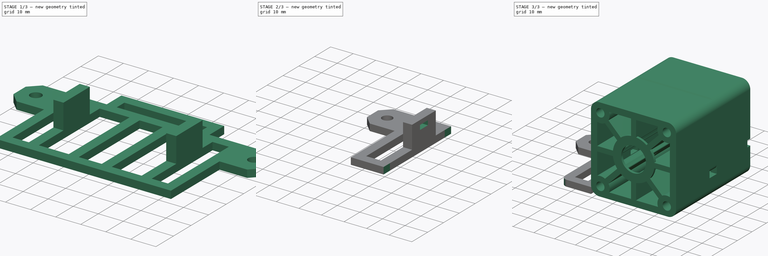
[diagram: build sequence overview — one tinted view per stage of 3, left to right]
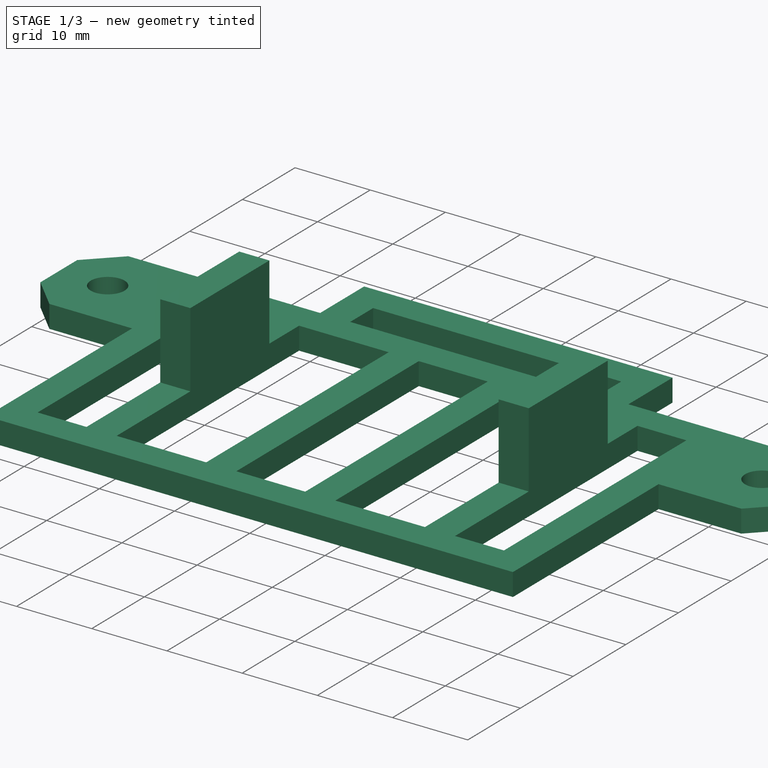
[diagram: stage 1 of 3 — iso view after this stage's code; geometry added in this stage tinted green]
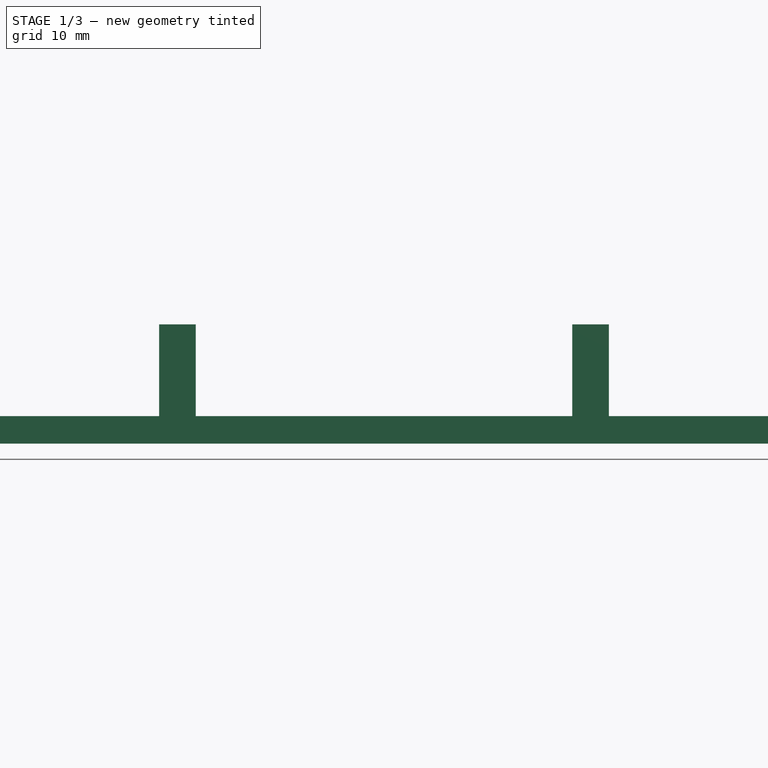
[diagram: stage 1 of 3 — front view after this stage's code; geometry added in this stage tinted green]
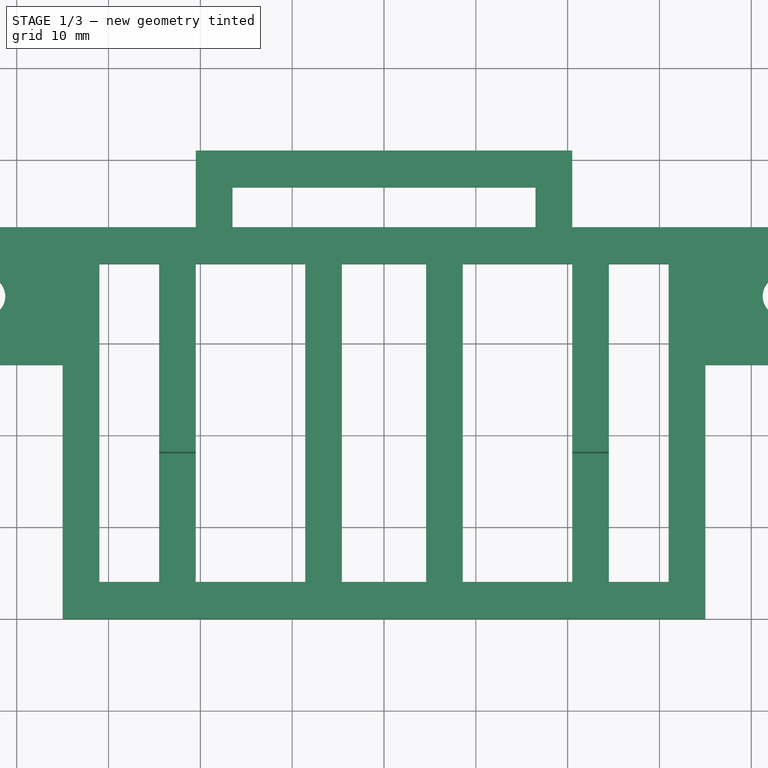
[diagram: stage 1 of 3 — top view after this stage's code; geometry added in this stage tinted green]
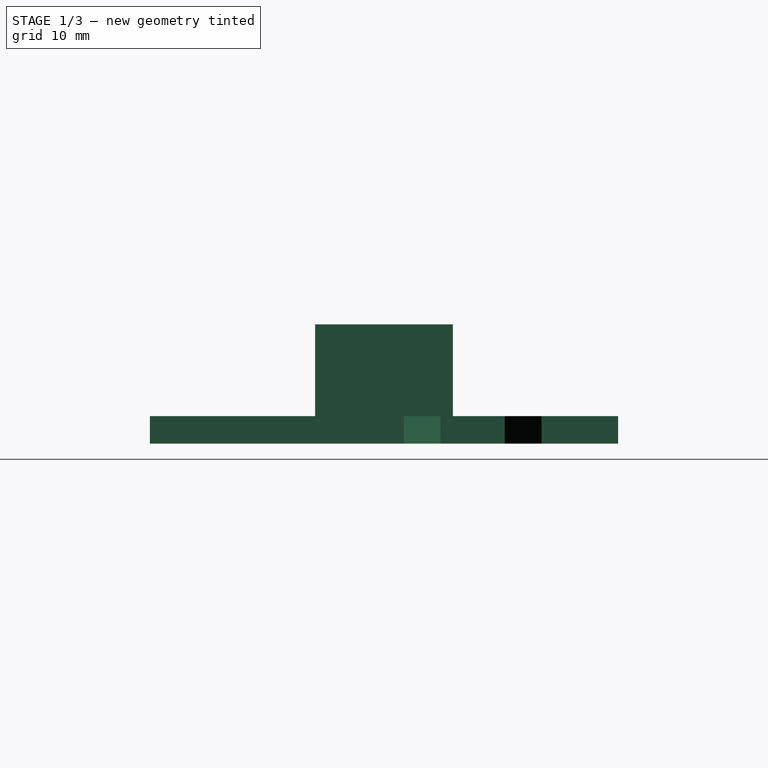
[diagram: stage 1 of 3 — right view after this stage's code; geometry added in this stage tinted green]
FCSTD DOCUMENT  (FreeCAD 0.16R6697 (Git))
Label: CNC Mount Halterung Laserdiode
License: All rights reserved
LicenseURL: http://de.wikipedia.org/wiki/Alle_Rechte_vorbehalten
objects: Drawing::FeatureViewPython×15, Sketcher::SketchObject×5, PartDesign::Pocket×3, PartDesign::Pad×2, PartDesign::Fillet×2, Drawing::FeatureViewPart×2, Part::FeaturePython×1, Drawing::FeaturePage×1
note: 18 computed .brp shape members not serialized (recipe doc carries the construction recipe); baked Part::Feature solids carry a one-line shape summary decoded from their .brp

FEATURE [Sketcher::SketchObject] Sketch
  sketch-geometry (20):
    g0: LineSegment StartX=-50 StartY=31.65 StartZ=0 EndX=-46 EndY=27.65 EndZ=0
    g1: LineSegment StartX=-46 StartY=27.65 StartZ=0 EndX=-35 EndY=27.65 EndZ=0
    g2: LineSegment StartX=-35 StartY=27.65 StartZ=0 EndX=-35 EndY=0 EndZ=0
    g3: LineSegment StartX=-35 StartY=0 StartZ=0 EndX=35 EndY=0 EndZ=0
    g4: LineSegment StartX=35 StartY=0 StartZ=0 EndX=35 EndY=27.65 EndZ=0
    g5: LineSegment StartX=35 StartY=27.65 StartZ=0 EndX=46 EndY=27.65 EndZ=0
    g6: LineSegment StartX=46 StartY=27.65 StartZ=0 EndX=50 EndY=31.65 EndZ=0
    g7: LineSegment StartX=50 StartY=31.65 StartZ=0 EndX=50 EndY=38.65 EndZ=0
    g8: LineSegment StartX=50 StartY=38.65 StartZ=0 EndX=46 EndY=42.65 EndZ=0
    g9: LineSegment [constr] StartX=46 StartY=42.65 StartZ=0 EndX=-46 EndY=42.65 EndZ=0
    g10: LineSegment StartX=-46 StartY=42.65 StartZ=0 EndX=-50 EndY=38.65 EndZ=0
    g11: LineSegment StartX=-50 StartY=38.65 StartZ=0 EndX=-50 EndY=31.65 EndZ=0
    g12: LineSegment [constr] StartX=-43.5 StartY=35.15 StartZ=0 EndX=43.5 EndY=35.15 EndZ=0
    g13: Circle CenterX=-43.5 CenterY=35.15 CenterZ=0 NormalX=0 NormalY=0 NormalZ=1 Radius=2.25
    g14: Circle CenterX=43.5 CenterY=35.15 CenterZ=0 NormalX=0 NormalY=0 NormalZ=1 Radius=2.25
    g15: LineSegment StartX=-46 StartY=42.65 StartZ=0 EndX=-20.5 EndY=42.65 EndZ=0
    g16: LineSegment StartX=-20.5 StartY=42.65 StartZ=0 EndX=-20.5 EndY=51 EndZ=0
    g17: LineSegment StartX=-20.5 StartY=51 StartZ=0 EndX=20.5 EndY=51 EndZ=0
    g18: LineSegment StartX=20.5 StartY=51 StartZ=0 EndX=20.5 EndY=42.65 EndZ=0
    g19: LineSegment StartX=20.5 StartY=42.65 StartZ=0 EndX=46 EndY=42.65 EndZ=0
  constraints (56):
    c: Coincident(g0,g1)
    c: Horizontal(g1)
    c: Coincident(g1,g2)
    c: PointOnObject(g2,g-1)
    c: Vertical(g2)
    c: Coincident(g2,g3)
    c: PointOnObject(g3,g-1)
    c: Coincident(g3,g4)
    c: Vertical(g4)
    c: Coincident(g4,g5)
    c: Horizontal(g5)
    c: Coincident(g5,g6)
    c: Coincident(g6,g7)
    c: Vertical(g7)
    c: Coincident(g7,g8)
    c: Coincident(g8,g9)
    c: Horizontal(g9)
    c: Coincident(g9,g10)
    c: Coincident(g10,g11)
    c: Coincident(g11,g0)
    c: Vertical(g11)
    c: PointOnObject(g4,g1)
    c: DistanceY(g4,g4) = 27.65
    c: DistanceX(g2,g-1) = 35
    c: Symmetric(g2,g3,g-2)
    c: DistanceX(g0,g-1) = 50
    c: Equal(g1,g5)
    c: Symmetric(g8,g9,g-2)
    c: Symmetric(g0,g6,g-2)
    c: DistanceX(g8,g7) = 4
    c: DistanceY(g7,g8) = 4
    c: DistanceX(g5,g6) = 4
    c: DistanceY(g5,g6) = 4
    c: Parallel(g6,g10)
    c: DistanceY(g-1,g9) = 42.65
    c: Symmetric(g12,g12,g-2)
    c: Coincident(g13,g12)
    c: Coincident(g14,g12)
    c: Radius(g13) = 2.25
    c: Equal(g13,g14)
    c: Symmetric(g9,g0,g12)
    c: DistanceX(g12,g-1) = 43.5
    c: Horizontal(g15)
    c: Coincident(g15,g16)
    c: Vertical(g16)
    c: Coincident(g16,g17)
    c: Horizontal(g17)
    c: Coincident(g17,g18)
    c: Vertical(g18)
    c: Coincident(g18,g19)
    c: Horizontal(g19)
    c: Coincident(g8,g19)
    c: Symmetric(g16,g17,g-2)
    c: Coincident(g9,g15)
    c: DistanceY(g2,g16) = 51
    c: DistanceX(g17,g17) = 41
FEATURE [PartDesign::Pad] Pad
  Length = 3
  Length2 = 100
  Sketch = -> Sketch
  Type = 0
FEATURE [Sketcher::SketchObject] Sketch001
  ExternalGeometry = -> [Pad]
  Placement = pos=(0,0,3) rot=(0,0,1;0rad)
  Support = -> Pad [Face20]
  sketch-geometry (28):
    g0: LineSegment StartX=-4.58389 StartY=38.65 StartZ=0 EndX=4.58389 EndY=38.65 EndZ=0
    g1: LineSegment StartX=4.58389 StartY=38.65 StartZ=0 EndX=4.58389 EndY=4 EndZ=0
    g2: LineSegment StartX=4.58389 StartY=4 StartZ=0 EndX=-4.58389 EndY=4 EndZ=0
    g3: LineSegment StartX=-4.58389 StartY=4 StartZ=0 EndX=-4.58389 EndY=38.65 EndZ=0
    g4: LineSegment StartX=-20.5 StartY=38.65 StartZ=0 EndX=-8.58389 EndY=38.65 EndZ=0
    g5: LineSegment StartX=-8.58389 StartY=38.65 StartZ=0 EndX=-8.58389 EndY=4 EndZ=0
    g6: LineSegment StartX=-8.58389 StartY=4 StartZ=0 EndX=-20.5 EndY=4 EndZ=0
    g7: LineSegment StartX=-20.5 StartY=4 StartZ=0 EndX=-20.5 EndY=38.65 EndZ=0
    g8: LineSegment StartX=-31 StartY=38.65 StartZ=0 EndX=-24.5 EndY=38.65 EndZ=0
    g9: LineSegment StartX=-24.5 StartY=38.65 StartZ=0 EndX=-24.5 EndY=4 EndZ=0
    g10: LineSegment StartX=-24.5 StartY=4 StartZ=0 EndX=-31 EndY=4 EndZ=0
    g11: LineSegment StartX=-31 StartY=4 StartZ=0 EndX=-31 EndY=38.65 EndZ=0
    g12: LineSegment StartX=8.58389 StartY=38.65 StartZ=0 EndX=20.5 EndY=38.65 EndZ=0
    g13: LineSegment StartX=20.5 StartY=38.65 StartZ=0 EndX=20.5 EndY=4 EndZ=0
    g14: LineSegment StartX=20.5 StartY=4 StartZ=0 EndX=8.58389 EndY=4 EndZ=0
    g15: LineSegment StartX=8.58389 StartY=4 StartZ=0 EndX=8.58389 EndY=38.65 EndZ=0
    g16: LineSegment StartX=24.5 StartY=38.65 StartZ=0 EndX=31 EndY=38.65 EndZ=0
    g17: LineSegment StartX=31 StartY=38.65 StartZ=0 EndX=31 EndY=4 EndZ=0
    g18: LineSegment StartX=31 StartY=4 StartZ=0 EndX=24.5 EndY=4 EndZ=0
    g19: LineSegment StartX=24.5 StartY=4 StartZ=0 EndX=24.5 EndY=38.65 EndZ=0
    g20: LineSegment [constr] StartX=-20.5 StartY=4 StartZ=0 EndX=-24.5 EndY=4 EndZ=0
    g21: LineSegment [constr] StartX=-8.58389 StartY=4 StartZ=0 EndX=-4.58389 EndY=4 EndZ=0
    g22: LineSegment [constr] StartX=4.58389 StartY=4 StartZ=0 EndX=8.58389 EndY=4 EndZ=0
    g23: LineSegment [constr] StartX=20.5 StartY=4 StartZ=0 EndX=24.5 EndY=4 EndZ=0
    g24: LineSegment StartX=-16.5 StartY=47 StartZ=0 EndX=16.5 EndY=47 EndZ=0
    g25: LineSegment StartX=16.5 StartY=47 StartZ=0 EndX=16.5 EndY=42.65 EndZ=0
    g26: LineSegment StartX=16.5 StartY=42.65 StartZ=0 EndX=-16.5 EndY=42.65 EndZ=0
    g27: LineSegment StartX=-16.5 StartY=42.65 StartZ=0 EndX=-16.5 EndY=47 EndZ=0
  constraints (78):
    c: Coincident(g0,g1)
    c: Coincident(g1,g2)
    c: Coincident(g2,g3)
    c: Coincident(g3,g0)
    c: Horizontal(g0)
    c: Vertical(g1)
    c: Vertical(g3)
    c: Coincident(g4,g5)
    c: Coincident(g5,g6)
    c: Coincident(g6,g7)
    c: Coincident(g7,g4)
    c: Horizontal(g4)
    c: Horizontal(g6)
    c: Vertical(g5)
    c: Vertical(g7)
    c: Coincident(g8,g9)
    c: Coincident(g9,g10)
    c: Coincident(g10,g11)
    c: Coincident(g11,g8)
    c: Horizontal(g8)
    c: Horizontal(g10)
    c: Vertical(g9)
    c: Vertical(g11)
    c: Coincident(g12,g13)
    c: Coincident(g13,g14)
    c: Coincident(g14,g15)
    c: Coincident(g15,g12)
    c: Horizontal(g12)
    c: Horizontal(g14)
    c: Vertical(g13)
    c: Vertical(g15)
    c: Coincident(g16,g17)
    c: Coincident(g17,g18)
    c: Coincident(g18,g19)
    c: Coincident(g19,g16)
    c: Horizontal(g16)
    c: Horizontal(g18)
    c: Vertical(g17)
    c: Vertical(g19)
    c: Coincident(g20,g6)
    c: Coincident(g20,g9)
    c: Coincident(g21,g5)
    c: Coincident(g21,g2)
    c: Coincident(g22,g1)
    c: Coincident(g22,g14)
    c: Coincident(g23,g13)
    c: Coincident(g23,g18)
    c: Horizontal(g20)
    c: Horizontal(g21)
    c: Horizontal(g22)
    c: Horizontal(g23)
    c: Symmetric(g2,g1,g-2)
    c: DistanceX(g6,g-1) = 20.5
    c: Equal(g20,g21)
    c: Equal(g21,g22)
    c: Equal(g22,g23)
    c: DistanceX(g23,g23) = 4
    c: DistanceX(g-4,g10) = 4
    c: DistanceY(g-4,g10) = 4
    c: PointOnObject(g16,g12)
    c: PointOnObject(g12,g4)
    c: PointOnObject(g4,g8)
    c: PointOnObject(g0,g4)
    c: Coincident(g24,g25)
    c: Coincident(g25,g26)
    c: Coincident(g26,g27)
    c: Coincident(g27,g24)
    c: Horizontal(g24)
    c: Horizontal(g26)
    c: Vertical(g25)
    c: Vertical(g27)
    c: DistanceY(g24,g-3) = 4
    c: DistanceY(g4,g26) = 4
    c: Symmetric(g26,g25,g-2)
    c: DistanceY(g8,g-5) = 4
    c: Symmetric(g10,g17,g-2)
    c: DistanceX(g24,g-3) = 4
    c: Symmetric(g6,g13,g-2)
FEATURE [PartDesign::Pocket] Pocket
  Length = 5
  Sketch = -> Sketch001
  Type = 1
FEATURE [Sketcher::SketchObject] Sketch002
  ExternalGeometry = -> [Pocket]
  Placement = pos=(0,0,3) rot=(0,0,1;0rad)
  Support = -> Pocket [Face5]
  sketch-geometry (9):
    g0: LineSegment [constr] StartX=-35 StartY=25.5 StartZ=0 EndX=35 EndY=25.5 EndZ=0
    g1: LineSegment StartX=-24.5 StartY=33 StartZ=0 EndX=-20.5 EndY=33 EndZ=0
    g2: LineSegment StartX=-20.5 StartY=33 StartZ=0 EndX=-20.5 EndY=18 EndZ=0
    g3: LineSegment StartX=-20.5 StartY=18 StartZ=0 EndX=-24.5 EndY=18 EndZ=0
    g4: LineSegment StartX=-24.5 StartY=18 StartZ=0 EndX=-24.5 EndY=33 EndZ=0
    g5: LineSegment StartX=20.5 StartY=33 StartZ=0 EndX=24.5 EndY=33 EndZ=0
    g6: LineSegment StartX=24.5 StartY=33 StartZ=0 EndX=24.5 EndY=18 EndZ=0
    g7: LineSegment StartX=24.5 StartY=18 StartZ=0 EndX=20.5 EndY=18 EndZ=0
    g8: LineSegment StartX=20.5 StartY=18 StartZ=0 EndX=20.5 EndY=33 EndZ=0
  constraints (28):
    c: PointOnObject(g0,g-4)
    c: PointOnObject(g0,g-5)
    c: Horizontal(g0)
    c: DistanceY(g-4,g0) = 25.5
    c: Coincident(g1,g2)
    c: Coincident(g2,g3)
    c: Coincident(g3,g4)
    c: Coincident(g4,g1)
    c: Horizontal(g1)
    c: Horizontal(g3)
    c: Vertical(g2)
    c: Vertical(g4)
    c: Coincident(g5,g6)
    c: Coincident(g6,g7)
    c: Coincident(g7,g8)
    c: Coincident(g8,g5)
    c: Horizontal(g5)
    c: Horizontal(g7)
    c: Vertical(g6)
    c: Vertical(g8)
    c: PointOnObject(g6,g3)
    c: PointOnObject(g5,g1)
    c: Symmetric(g1,g2,g0)
    c: DistanceY(g2,g1) = 15
    c: PointOnObject(g5,g-9)
    c: PointOnObject(g7,g-8)
    c: PointOnObject(g2,g-7)
    c: PointOnObject(g1,g-6)
FEATURE [PartDesign::Pad] Pad001
  Length = 10
  Length2 = 100
  Sketch = -> Sketch002
  Type = 0
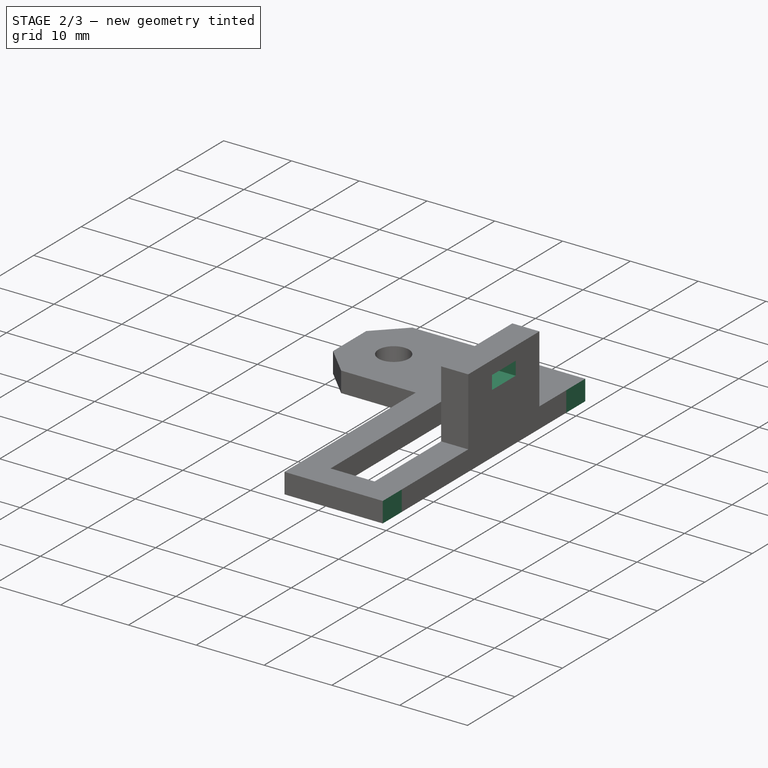
[diagram: stage 2 of 3 — iso view after this stage's code; geometry added in this stage tinted green]
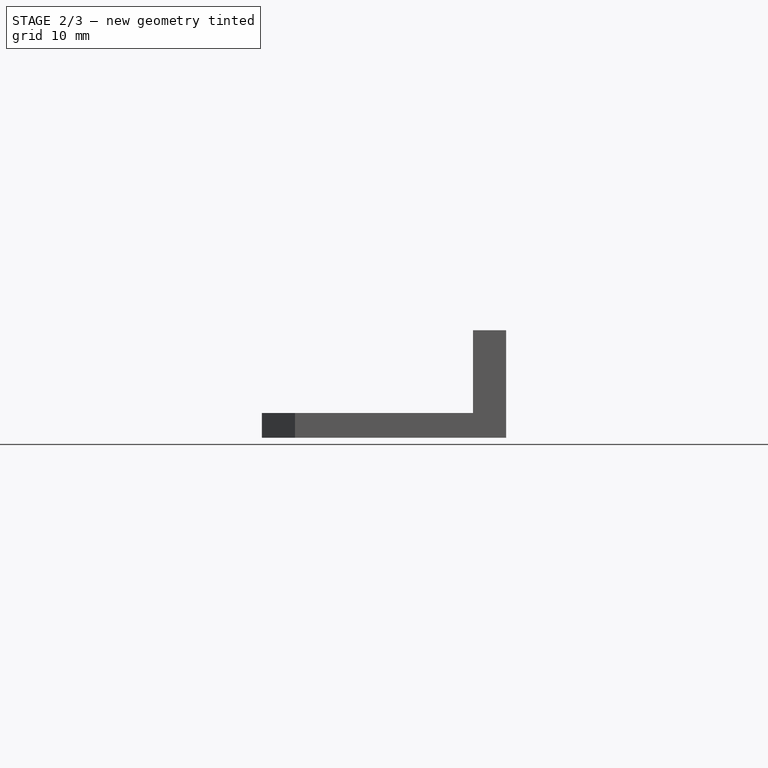
[diagram: stage 2 of 3 — front view after this stage's code; geometry added in this stage tinted green]
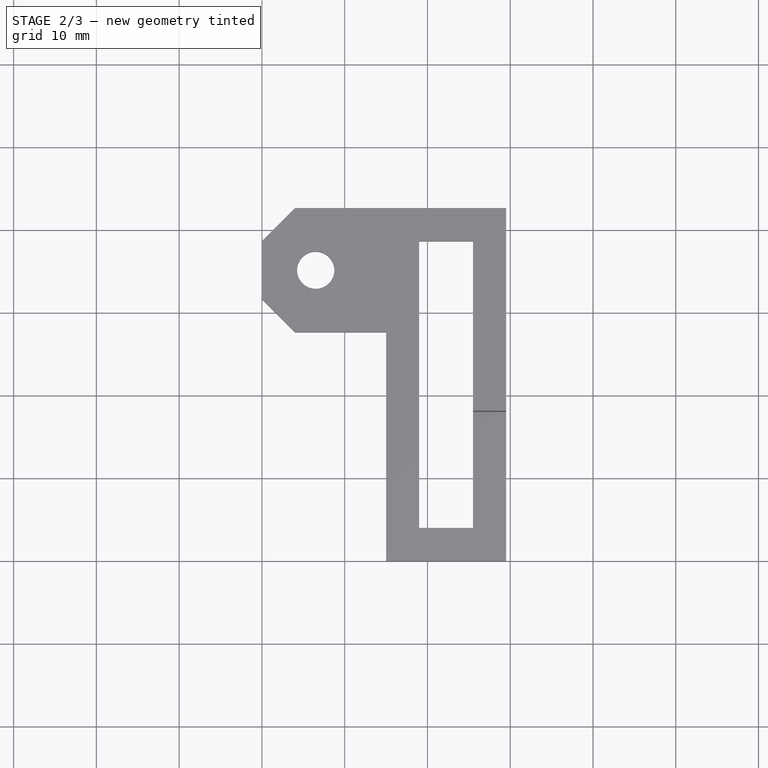
[diagram: stage 2 of 3 — top view after this stage's code; geometry added in this stage tinted green]
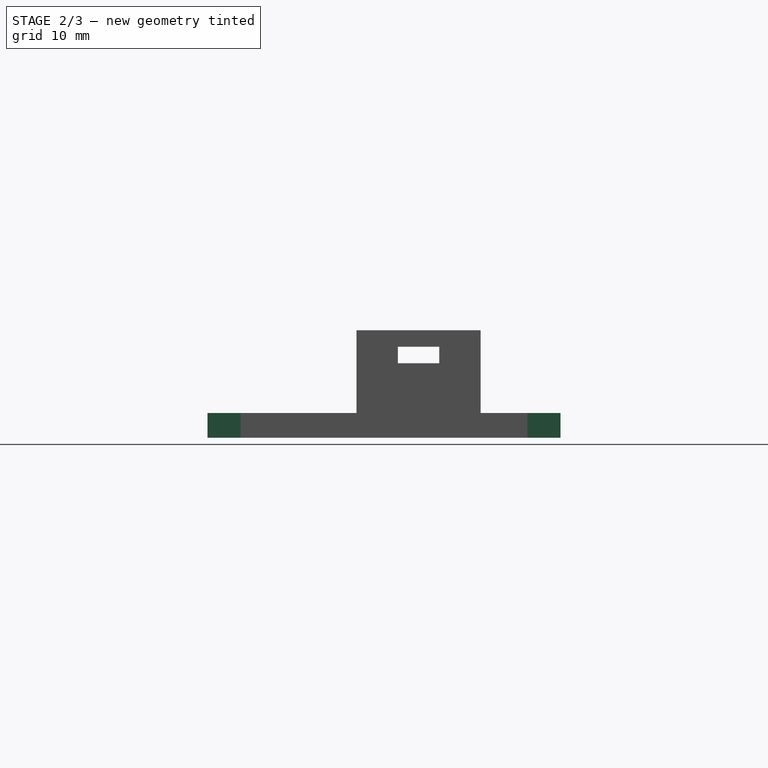
[diagram: stage 2 of 3 — right view after this stage's code; geometry added in this stage tinted green]
FEATURE [Sketcher::SketchObject] Sketch003
  ExternalGeometry = -> [Pad001]
  Placement = pos=(-24.5,0,0) rot=(0.57735,-0.57735,-0.57735;2.0944rad)
  Support = -> Pad001 [Face49]
  sketch-geometry (5):
    g0: LineSegment [constr] StartX=-25.5 StartY=3 StartZ=0 EndX=-25.5 EndY=13 EndZ=0
    g1: LineSegment StartX=-28 StartY=11 StartZ=0 EndX=-23 EndY=11 EndZ=0
    g2: LineSegment StartX=-23 StartY=11 StartZ=0 EndX=-23 EndY=9 EndZ=0
    g3: LineSegment StartX=-23 StartY=9 StartZ=0 EndX=-28 EndY=9 EndZ=0
    g4: LineSegment StartX=-28 StartY=9 StartZ=0 EndX=-28 EndY=11 EndZ=0
  constraints (15):
    c: PointOnObject(g0,g-3)
    c: PointOnObject(g0,g-4)
    c: Symmetric(g-4,g-4,g0)
    c: Coincident(g1,g2)
    c: Coincident(g2,g3)
    c: Coincident(g3,g4)
    c: Coincident(g4,g1)
    c: Horizontal(g1)
    c: Horizontal(g3)
    c: Vertical(g2)
    c: Vertical(g4)
    c: Symmetric(g3,g2,g0)
    c: DistanceY(g2,g2) = 2
    c: DistanceX(g1,g1) = 5
    c: DistanceY(g0,g3) = 6
FEATURE [PartDesign::Pocket] Pocket001
  Length = 5
  Sketch = -> Sketch003
  Type = 1
FEATURE [Sketcher::SketchObject] Sketch004
  ExternalGeometry = -> [Pocket001]
  Placement = pos=(0,0,3) rot=(0,0,1;0rad)
  Support = -> Pocket001 [Face5]
  sketch-geometry (4):
    g0: LineSegment StartX=-20.5 StartY=0 StartZ=0 EndX=20.5 EndY=0 EndZ=0
    g1: LineSegment StartX=20.5 StartY=0 StartZ=0 EndX=20.5 EndY=51 EndZ=0
    g2: LineSegment StartX=20.5 StartY=51 StartZ=0 EndX=-20.5 EndY=51 EndZ=0
    g3: LineSegment StartX=-20.5 StartY=51 StartZ=0 EndX=-20.5 EndY=0 EndZ=0
  constraints (12):
    c: Coincident(g0,g1)
    c: Coincident(g1,g2)
    c: Coincident(g2,g3)
    c: Coincident(g3,g0)
    c: Horizontal(g0)
    c: Horizontal(g2)
    c: Vertical(g1)
    c: Vertical(g3)
    c: PointOnObject(g1,g-5)
    c: PointOnObject(g-4,g1)
    c: PointOnObject(g-3,g3)
    c: PointOnObject(g0,g-1)
FEATURE [PartDesign::Pocket] Pocket002
  Length = 5
  Sketch = -> Sketch004
  Type = 1
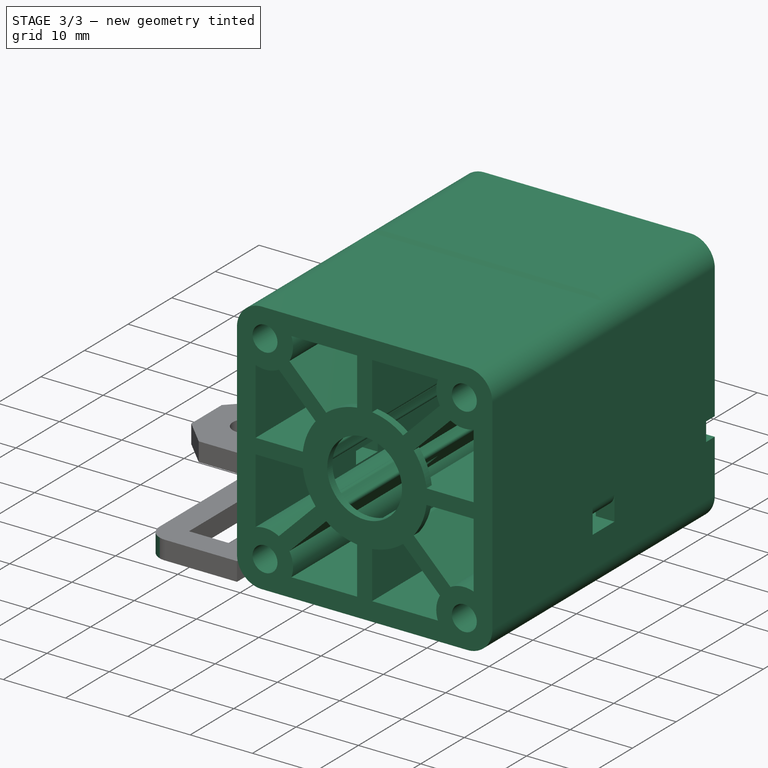
[diagram: stage 3 of 3 — iso view after this stage's code; geometry added in this stage tinted green]
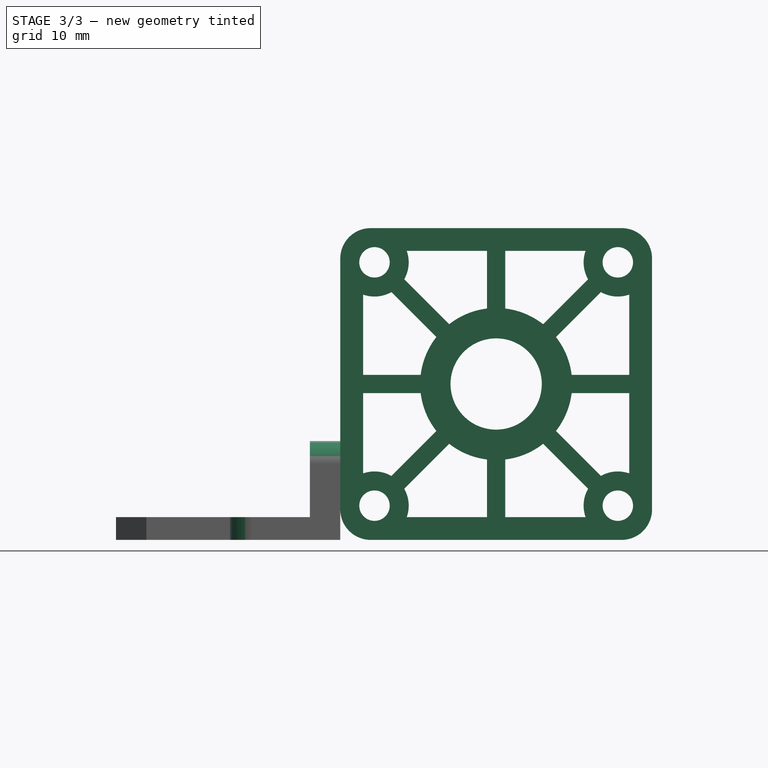
[diagram: stage 3 of 3 — front view after this stage's code; geometry added in this stage tinted green]
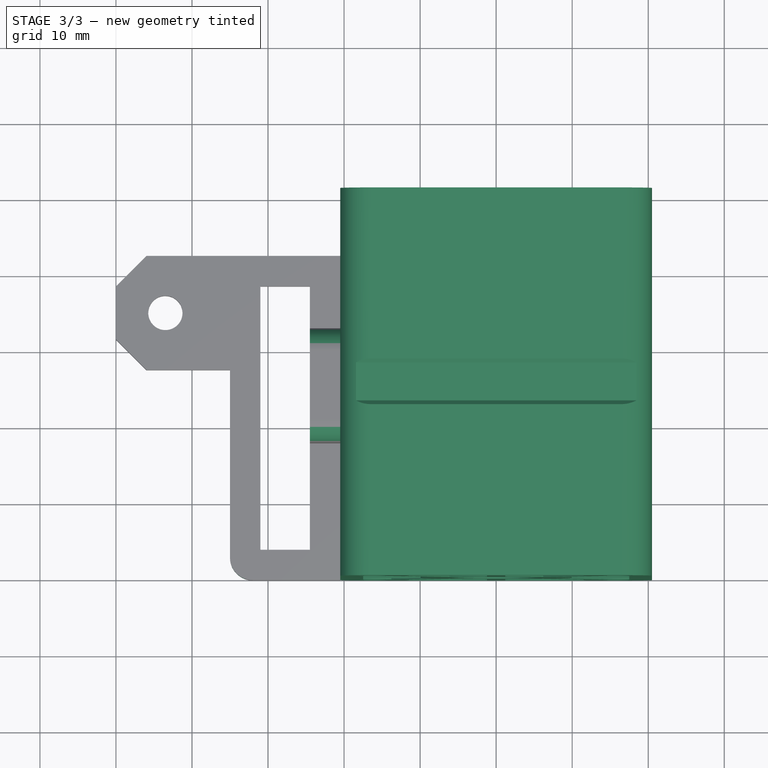
[diagram: stage 3 of 3 — top view after this stage's code; geometry added in this stage tinted green]
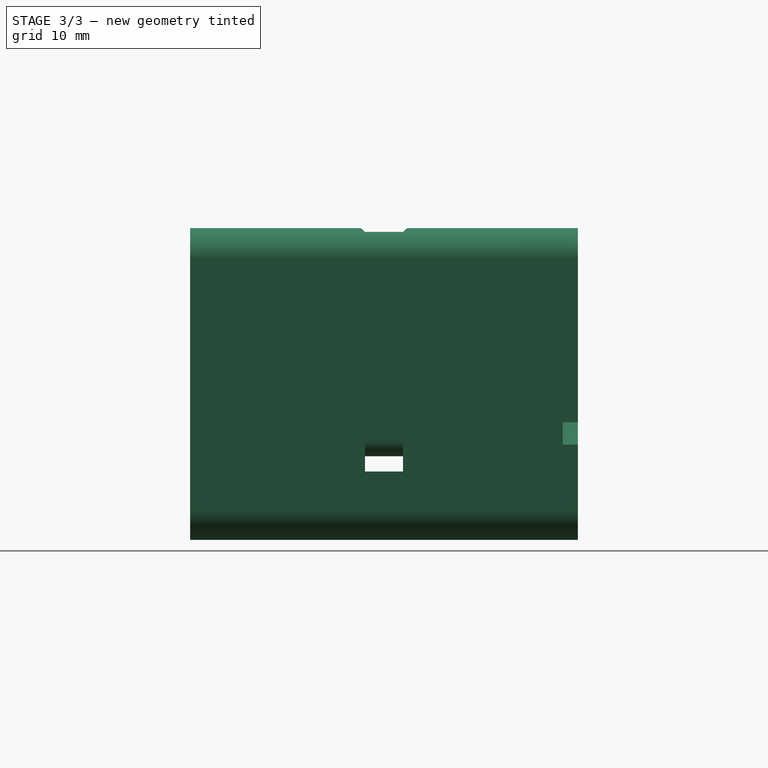
[diagram: stage 3 of 3 — right view after this stage's code; geometry added in this stage tinted green]
FEATURE [Part::FeaturePython] Halterung_Laserdiode_01  # a2plus imported part (geometry in sourceFile) (typed FeaturePython)
  Placement = pos=(0,0,20.5) rot=(-0.57735,0.57735,0.57735;2.0944rad)
  fixedPosition = true
  sourceFile = <path> Laserdiode.FCStd
  timeLastImport = 1.46011e+09
  updateColors = true
FEATURE [PartDesign::Fillet] Fillet
  Base = -> Pocket002 [Edge53,Edge56]
  Radius = 3
FEATURE [PartDesign::Fillet] Fillet001
  Base = -> Fillet [Edge60]
  Radius = 3
FEATURE [Drawing::FeatureViewPart] Ortho  label="Ortho_0_0"
  Direction = (0,0,1)
  HiddenWidth = 0.15
  LineWidth = 0.35
  Rotation = 0
  Scale = 3
  ShowHiddenLines = false
  ShowSmoothLines = false
  Source = -> Fillet001
  Tolerance = 0.05
  ViewResult = <blob: 2289 chars omitted>
  Visible = true
  X = 207.083
  Y = 168.975
FEATURE [Drawing::FeatureViewPart] Ortho001  label="Ortho_1_0"
  Direction = (1,0,0)
  HiddenWidth = 0.15
  LineWidth = 0.35
  Rotation = 180
  Scale = 3
  ShowHiddenLines = false
  ShowSmoothLines = false
  Source = -> Fillet001
  Tolerance = 0.05
  ViewResult = <g id="Ortho_1_0"\n   transform="rotate(180,230.833,168.975) translate(230.833,168.975) scale(3,3)"\n  >\n<g   stroke="rgb(0, 0, 0)"\n   stroke-width="0.116667"\n   stroke-linecap="butt"\n   stroke-linejoin="miter"\n   fill="none"\n   transform="scale(1,-1)"\n  >\n<path id= "1" d=" M 3 -4 L 3 0 " />\n<path id= "2" d=" M 3 -18 L 3 -4 " />\n<path id= "3" d=" M 3 -42.65 L 3 -38.65 " />\n<path id= "4" d=" M 3 -38.65 L 3 -33 " />\n<path id= "5" d=" M 0 4.44089e-016 L 3 4.44089e-016 " />\n<path id= "6" d=" M 3 0 L 0 0 " />\n<path id= "7" d=" M 0 0 L 0 -4 " />\n<path id= "8" d=" M 3 -4 L 0 -4 " />\n<path id= "9" d=" M 3 -33 L 3 -18 " />\n<path id= "10" d=" M 0 -38.65 L 0 -4 " />\n<path id= "11" d=" M 3 -38.65 L 0 -38.65 " />\n<path id= "12" d=" M 3 -18 L 10 -18 " />\n<path id= "13" d=" M 0 -42.65 L 3 -42.65 " />\n<path id= "14" d=" M 0 -38.65 L 0 -42.65 " />\n<path id= "15" d=" M 3 -33 L 10 -33 " />\n<path d="M10 -33 A3 3 0 0 1 13 -30" /><path id= "17" d=" M 13 -30 L 13 -21 " />\n<path d="M10 -18 A3 3 0 0 0 13 -21" /><path id= "19" d=" M 11 -23 L 11 -28 " />\n<path id= "20" d=" M 9 -23 L 11 -23 " />\n<path id= "21" d=" M 11 -28 L 9 -28 " />\n<path id= "22" d=" M 9 -28 L 9 -23 " />\n</g>\n</g>
  Visible = true
  X = 230.833
  Y = 168.975
FEATURE [Drawing::FeatureViewPython] dim001  # drawing view (typed FeaturePython)
  Rotation = 0
  ViewResult = <g> \n  <line x1="147.583000" y1="168.975000" x2="160.218593" y2="168.975000" style="stroke:rgb(0,0,255);stroke-width:0.50" />\n<line x1="147.583000" y1="41.025000" x2="160.218593" y2="41.025000" style="stroke:rgb(0,0,255);stroke-width:0.50" />\n<line x1="159.218593" y1="168.975000" x2="159.218593" y2="41.025000" style="stroke:rgb(0,0,255);stroke-width:0.50" /> \n  <polygon points="159.218593,41.025000 158.218593,44.025000 159.218593,45.025000 160.218593,44.025000" style="fill:rgb(0,0,255);stroke:rgb(0,0,255);stroke-width:0" /><polygon points="159.218593,168.975000 160.218593,165.975000 159.218593,164.975000 158.218593,165.975000" style="fill:rgb(0,0,255);stroke:rgb(0,0,255);stroke-width:0" /> \n  <text x="157.218593" y="105.000000" font-family="inherit" font-size="3.6" fill="rgb(0,0,255)" text-anchor="middle" transform="rotate(-90.000000 157.218593,105.000000)" >42.65</text> </g>
  Visible = true
  X = 0
  Y = 0
  arrowL1 = 3
  arrowL2 = 1
  arrowW = 2
  arrow_scheme = 0
  autoPlaceOffset = 2
  autoPlaceText = true
  click1_x = 159.219
  click1_y = 42.7376
  click2_x = 159.219
  click2_y = 42.7376
  comma_decimal_place = false
  dimension_line_overshoot = 1
  gap_datum_points = 2
  halfDimension_linear = false
  lineColor = rgb(0,0,255)
  strokeWidth = 0.5
  textFormat_linear = %(value)3.3f
  textRenderer_color = rgb(0,0,255)
  textRenderer_family = inherit
  textRenderer_size = 3.6
  unit_custom_scale = 1
  unit_scheme = 0
FEATURE [Drawing::FeatureViewPython] dim002  # drawing view (typed FeaturePython)
  Rotation = 0
  ViewResult = <g> \n  <line x1="145.583000" y1="39.025000" x2="145.583000" y2="9.335242" style="stroke:rgb(0,0,255);stroke-width:0.50" />\n<line x1="57.083000" y1="51.025000" x2="57.083000" y2="9.335242" style="stroke:rgb(0,0,255);stroke-width:0.50" />\n<line x1="145.583000" y1="10.335242" x2="57.083000" y2="10.335242" style="stroke:rgb(0,0,255);stroke-width:0.50" /> \n  <polygon points="57.083000,10.335242 60.083000,11.335242 61.083000,10.335242 60.083000,9.335242" style="fill:rgb(0,0,255);stroke:rgb(0,0,255);stroke-width:0" /><polygon points="145.583000,10.335242 142.583000,9.335242 141.583000,10.335242 142.583000,11.335242" style="fill:rgb(0,0,255);stroke:rgb(0,0,255);stroke-width:0" /> \n  <text x="101.333000" y="8.335242" font-family="inherit" font-size="3.6" fill="rgb(0,0,255)" text-anchor="middle" transform="rotate(0.000000 101.333000,8.335242)" >29.5</text> </g>
  Visible = true
  X = 0
  Y = 0
  arrowL1 = 3
  arrowL2 = 1
  arrowW = 2
  arrow_scheme = 0
  autoPlaceOffset = 2
  autoPlaceText = true
  click1_x = 59.4975
  click1_y = 10.3352
  click2_x = 59.4975
  click2_y = 10.3352
  comma_decimal_place = false
  dimension_line_overshoot = 1
  gap_datum_points = 2
  halfDimension_linear = false
  lineColor = rgb(0,0,255)
  strokeWidth = 0.5
  textFormat_linear = %(value)3.3f
  textRenderer_color = rgb(0,0,255)
  textRenderer_family = inherit
  textRenderer_size = 3.6
  unit_custom_scale = 1
  unit_scheme = 0
FEATURE [Drawing::FeatureViewPython] dim003  # drawing view (typed FeaturePython)
  Rotation = 0
  ViewResult = <g> \n  <line x1="69.083000" y1="39.025000" x2="69.083000" y2="32.240373" style="stroke:rgb(0,0,255);stroke-width:0.50" />\n<line x1="145.583000" y1="39.025000" x2="145.583000" y2="32.240373" style="stroke:rgb(0,0,255);stroke-width:0.50" />\n<line x1="69.083000" y1="33.240373" x2="145.583000" y2="33.240373" style="stroke:rgb(0,0,255);stroke-width:0.50" /> \n  <polygon points="145.583000,33.240373 142.583000,32.240373 141.583000,33.240373 142.583000,34.240373" style="fill:rgb(0,0,255);stroke:rgb(0,0,255);stroke-width:0" /><polygon points="69.083000,33.240373 72.083000,34.240373 73.083000,33.240373 72.083000,32.240373" style="fill:rgb(0,0,255);stroke:rgb(0,0,255);stroke-width:0" /> \n  <text x="107.333000" y="31.240373" font-family="inherit" font-size="3.6" fill="rgb(0,0,255)" text-anchor="middle" transform="rotate(0.000000 107.333000,31.240373)" >25.5</text> </g>
  Visible = true
  X = 0
  Y = 0
  arrowL1 = 3
  arrowL2 = 1
  arrowW = 2
  arrow_scheme = 0
  autoPlaceOffset = 2
  autoPlaceText = true
  click1_x = 142.738
  click1_y = 33.2404
  click2_x = 142.738
  click2_y = 33.2404
  comma_decimal_place = false
  dimension_line_overshoot = 1
  gap_datum_points = 2
  halfDimension_linear = false
  lineColor = rgb(0,0,255)
  strokeWidth = 0.5
  textFormat_linear = %(value)3.3f
  textRenderer_color = rgb(0,0,255)
  textRenderer_family = inherit
  textRenderer_size = 3.6
  unit_custom_scale = 1
  unit_scheme = 0
FEATURE [Drawing::FeatureViewPython] dim004  # drawing view (typed FeaturePython)
  Rotation = 0
  ViewResult = <g> \n  <line x1="100.083000" y1="86.025000" x2="89.223869" y2="86.025000" style="stroke:rgb(0,0,255);stroke-width:0.50" />\n<line x1="143.583000" y1="168.975000" x2="89.223869" y2="168.975000" style="stroke:rgb(0,0,255);stroke-width:0.50" />\n<line x1="90.223869" y1="86.025000" x2="90.223869" y2="168.975000" style="stroke:rgb(0,0,255);stroke-width:0.50" /> \n  <polygon points="90.223869,168.975000 91.223869,165.975000 90.223869,164.975000 89.223869,165.975000" style="fill:rgb(0,0,255);stroke:rgb(0,0,255);stroke-width:0" /><polygon points="90.223869,86.025000 89.223869,89.025000 90.223869,90.025000 91.223869,89.025000" style="fill:rgb(0,0,255);stroke:rgb(0,0,255);stroke-width:0" /> \n  <text x="88.223869" y="127.500000" font-family="inherit" font-size="3.6" fill="rgb(0,0,255)" text-anchor="middle" transform="rotate(-90.000000 88.223869,127.500000)" >27.65</text> </g>
  Visible = true
  X = 0
  Y = 0
  arrowL1 = 3
  arrowL2 = 1
  arrowW = 2
  arrow_scheme = 0
  autoPlaceOffset = 2
  autoPlaceText = true
  click1_x = 90.2239
  click1_y = 164.247
  click2_x = 90.2239
  click2_y = 164.247
  comma_decimal_place = false
  dimension_line_overshoot = 1
  gap_datum_points = 2
  halfDimension_linear = false
  lineColor = rgb(0,0,255)
  strokeWidth = 0.5
  textFormat_linear = %(value)3.3f
  textRenderer_color = rgb(0,0,255)
  textRenderer_family = inherit
  textRenderer_size = 3.6
  unit_custom_scale = 1
  unit_scheme = 0
FEATURE [Drawing::FeatureViewPython] dim005  # drawing view (typed FeaturePython)
  Rotation = 0
  ViewResult = <g> \n  <line x1="74.583000" y1="63.525000" x2="74.140002" y2="63.525000" style="stroke:rgb(0,0,255);stroke-width:0.50" />\n<line x1="143.583000" y1="168.975000" x2="74.140002" y2="168.975000" style="stroke:rgb(0,0,255);stroke-width:0.50" />\n<line x1="75.140002" y1="63.525000" x2="75.140002" y2="168.975000" style="stroke:rgb(0,0,255);stroke-width:0.50" /> \n  <polygon points="75.140002,168.975000 76.140002,165.975000 75.140002,164.975000 74.140002,165.975000" style="fill:rgb(0,0,255);stroke:rgb(0,0,255);stroke-width:0" /><polygon points="75.140002,63.525000 74.140002,66.525000 75.140002,67.525000 76.140002,66.525000" style="fill:rgb(0,0,255);stroke:rgb(0,0,255);stroke-width:0" /> \n  <text x="73.140002" y="116.250000" font-family="inherit" font-size="3.6" fill="rgb(0,0,255)" text-anchor="middle" transform="rotate(-90.000000 73.140002,116.250000)" >35.15</text> </g>
  Visible = true
  X = 0
  Y = 0
  arrowL1 = 3
  arrowL2 = 1
  arrowW = 2
  arrow_scheme = 0
  autoPlaceOffset = 2
  autoPlaceText = true
  click1_x = 75.14
  click1_y = 162.012
  click2_x = 75.14
  click2_y = 162.012
  comma_decimal_place = false
  dimension_line_overshoot = 1
  gap_datum_points = 2
  halfDimension_linear = false
  lineColor = rgb(0,0,255)
  strokeWidth = 0.5
  textFormat_linear = %(value)3.3f
  textRenderer_color = rgb(0,0,255)
  textRenderer_family = inherit
  textRenderer_size = 3.6
  unit_custom_scale = 1
  unit_scheme = 0
FEATURE [Drawing::FeatureViewPython] dim006  # drawing view (typed FeaturePython)
  Rotation = 0
  ViewResult = <g> \n  <line x1="55.083000" y1="74.025000" x2="55.145504" y2="74.025000" style="stroke:rgb(0,0,255);stroke-width:0.50" />\n<line x1="143.583000" y1="168.975000" x2="55.145504" y2="168.975000" style="stroke:rgb(0,0,255);stroke-width:0.50" />\n<line x1="56.145504" y1="74.025000" x2="56.145504" y2="168.975000" style="stroke:rgb(0,0,255);stroke-width:0.50" /> \n  <polygon points="56.145504,168.975000 57.145504,165.975000 56.145504,164.975000 55.145504,165.975000" style="fill:rgb(0,0,255);stroke:rgb(0,0,255);stroke-width:0" /><polygon points="56.145504,74.025000 55.145504,77.025000 56.145504,78.025000 57.145504,77.025000" style="fill:rgb(0,0,255);stroke:rgb(0,0,255);stroke-width:0" /> \n  <text x="54.145504" y="121.500000" font-family="inherit" font-size="3.6" fill="rgb(0,0,255)" text-anchor="middle" transform="rotate(-90.000000 54.145504,121.500000)" >31.65</text> </g>
  Visible = true
  X = 0
  Y = 0
  arrowL1 = 3
  arrowL2 = 1
  arrowW = 2
  arrow_scheme = 0
  autoPlaceOffset = 2
  autoPlaceText = true
  click1_x = 56.1455
  click1_y = 162.291
  click2_x = 56.1455
  click2_y = 162.291
  comma_decimal_place = false
  dimension_line_overshoot = 1
  gap_datum_points = 2
  halfDimension_linear = false
  lineColor = rgb(0,0,255)
  strokeWidth = 0.5
  textFormat_linear = %(value)3.3f
  textRenderer_color = rgb(0,0,255)
  textRenderer_family = inherit
  textRenderer_size = 3.6
  unit_custom_scale = 1
  unit_scheme = 0
FEATURE [Drawing::FeatureViewPython] dim007  # drawing view (typed FeaturePython)
  Rotation = 0
  ViewResult = <g> \n  <line x1="76.583000" y1="65.525000" x2="76.583000" y2="185.079039" style="stroke:rgb(0,0,255);stroke-width:0.50" />\n<line x1="145.583000" y1="170.975000" x2="145.583000" y2="185.079039" style="stroke:rgb(0,0,255);stroke-width:0.50" />\n<line x1="76.583000" y1="184.079039" x2="145.583000" y2="184.079039" style="stroke:rgb(0,0,255);stroke-width:0.50" /> \n  <polygon points="145.583000,184.079039 142.583000,183.079039 141.583000,184.079039 142.583000,185.079039" style="fill:rgb(0,0,255);stroke:rgb(0,0,255);stroke-width:0" /><polygon points="76.583000,184.079039 79.583000,185.079039 80.583000,184.079039 79.583000,183.079039" style="fill:rgb(0,0,255);stroke:rgb(0,0,255);stroke-width:0" /> \n  <text x="111.083000" y="182.079039" font-family="inherit" font-size="3.6" fill="rgb(0,0,255)" text-anchor="middle" transform="rotate(0.000000 111.083000,182.079039)" >23</text> </g>
  Visible = true
  X = 0
  Y = 0
  arrowL1 = 3
  arrowL2 = 1
  arrowW = 2
  arrow_scheme = 0
  autoPlaceOffset = 2
  autoPlaceText = true
  click1_x = 139.386
  click1_y = 184.079
  click2_x = 139.386
  click2_y = 184.079
  comma_decimal_place = false
  dimension_line_overshoot = 1
  gap_datum_points = 2
  halfDimension_linear = false
  lineColor = rgb(0,0,255)
  strokeWidth = 0.5
  textFormat_linear = %(value)3.3f
  textRenderer_color = rgb(0,0,255)
  textRenderer_family = inherit
  textRenderer_size = 3.6
  unit_custom_scale = 1
  unit_scheme = 0
FEATURE [Drawing::FeatureViewPython] dim008  # drawing view (typed FeaturePython)
  Rotation = 0
  ViewResult = <g> \n  <line x1="102.083000" y1="88.025000" x2="102.083000" y2="197.760661" style="stroke:rgb(0,0,255);stroke-width:0.50" />\n<line x1="145.583000" y1="170.975000" x2="145.583000" y2="197.760661" style="stroke:rgb(0,0,255);stroke-width:0.50" />\n<line x1="102.083000" y1="196.760661" x2="145.583000" y2="196.760661" style="stroke:rgb(0,0,255);stroke-width:0.50" /> \n  <polygon points="145.583000,196.760661 142.583000,195.760661 141.583000,196.760661 142.583000,197.760661" style="fill:rgb(0,0,255);stroke:rgb(0,0,255);stroke-width:0" /><polygon points="102.083000,196.760661 105.083000,197.760661 106.083000,196.760661 105.083000,195.760661" style="fill:rgb(0,0,255);stroke:rgb(0,0,255);stroke-width:0" /> \n  <text x="123.833000" y="194.760661" font-family="inherit" font-size="3.6" fill="rgb(0,0,255)" text-anchor="middle" transform="rotate(0.000000 123.833000,194.760661)" >14.5</text> </g>
  Visible = true
  X = 0
  Y = 0
  arrowL1 = 3
  arrowL2 = 1
  arrowW = 2
  arrow_scheme = 0
  autoPlaceOffset = 2
  autoPlaceText = true
  click1_x = 134.414
  click1_y = 196.761
  click2_x = 134.414
  click2_y = 196.761
  comma_decimal_place = false
  dimension_line_overshoot = 1
  gap_datum_points = 2
  halfDimension_linear = false
  lineColor = rgb(0,0,255)
  strokeWidth = 0.5
  textFormat_linear = %(value)3.3f
  textRenderer_color = rgb(0,0,255)
  textRenderer_family = inherit
  textRenderer_size = 3.6
  unit_custom_scale = 1
  unit_scheme = 0
FEATURE [Drawing::FeatureViewPython] dim009  # drawing view (typed FeaturePython)
  Rotation = 0
  ViewResult = <g> \n  <line x1="191.833000" y1="76.975000" x2="191.833000" y2="15.424655" style="stroke:rgb(0,0,255);stroke-width:0.50" />\n<line x1="230.833000" y1="39.025000" x2="230.833000" y2="15.424655" style="stroke:rgb(0,0,255);stroke-width:0.50" />\n<line x1="191.833000" y1="16.424655" x2="230.833000" y2="16.424655" style="stroke:rgb(0,0,255);stroke-width:0.50" /> \n  <polygon points="230.833000,16.424655 227.833000,15.424655 226.833000,16.424655 227.833000,17.424655" style="fill:rgb(0,0,255);stroke:rgb(0,0,255);stroke-width:0" /><polygon points="191.833000,16.424655 194.833000,17.424655 195.833000,16.424655 194.833000,15.424655" style="fill:rgb(0,0,255);stroke:rgb(0,0,255);stroke-width:0" /> \n  <text x="211.333000" y="14.424655" font-family="inherit" font-size="3.6" fill="rgb(0,0,255)" text-anchor="middle" transform="rotate(0.000000 211.333000,14.424655)" >13</text> </g>
  Visible = true
  X = 0
  Y = 0
  arrowL1 = 3
  arrowL2 = 1
  arrowW = 2
  arrow_scheme = 0
  autoPlaceOffset = 2
  autoPlaceText = true
  click1_x = 223.912
  click1_y = 16.4247
  click2_x = 223.912
  click2_y = 16.4247
  comma_decimal_place = false
  dimension_line_overshoot = 1
  gap_datum_points = 2
  halfDimension_linear = false
  lineColor = rgb(0,0,255)
  strokeWidth = 0.5
  textFormat_linear = %(value)3.3f
  textRenderer_color = rgb(0,0,255)
  textRenderer_family = inherit
  textRenderer_size = 3.6
  unit_custom_scale = 1
  unit_scheme = 0
FEATURE [Drawing::FeatureViewPython] dim010  # drawing view (typed FeaturePython)
  Rotation = 0
  ViewResult = <g> \n  <line x1="232.833000" y1="41.025000" x2="254.073763" y2="41.025000" style="stroke:rgb(0,0,255);stroke-width:0.50" />\n<line x1="223.833000" y1="69.975000" x2="254.073763" y2="69.975000" style="stroke:rgb(0,0,255);stroke-width:0.50" />\n<line x1="253.073763" y1="41.025000" x2="253.073763" y2="69.975000" style="stroke:rgb(0,0,255);stroke-width:0.50" /> \n  <polygon points="253.073763,69.975000 254.073763,66.975000 253.073763,65.975000 252.073763,66.975000" style="fill:rgb(0,0,255);stroke:rgb(0,0,255);stroke-width:0" /><polygon points="253.073763,41.025000 252.073763,44.025000 253.073763,45.025000 254.073763,44.025000" style="fill:rgb(0,0,255);stroke:rgb(0,0,255);stroke-width:0" /> \n  <text x="251.073763" y="55.500000" font-family="inherit" font-size="3.6" fill="rgb(0,0,255)" text-anchor="middle" transform="rotate(-90.000000 251.073763,55.500000)" >9.65</text> </g>
  Visible = true
  X = 0
  Y = 0
  arrowL1 = 3
  arrowL2 = 1
  arrowW = 2
  arrow_scheme = 0
  autoPlaceOffset = 2
  autoPlaceText = true
  click1_x = 253.074
  click1_y = 68.7154
  click2_x = 253.074
  click2_y = 68.7154
  comma_decimal_place = false
  dimension_line_overshoot = 1
  gap_datum_points = 2
  halfDimension_linear = false
  lineColor = rgb(0,0,255)
  strokeWidth = 0.5
  textFormat_linear = %(value)3.3f
  textRenderer_color = rgb(0,0,255)
  textRenderer_family = inherit
  textRenderer_size = 3.6
  unit_custom_scale = 1
  unit_scheme = 0
FEATURE [Drawing::FeatureViewPython] dim011  # drawing view (typed FeaturePython)
  Rotation = 0
  ViewResult = <g> \n  <line x1="223.833000" y1="114.975000" x2="263.794477" y2="114.975000" style="stroke:rgb(0,0,255);stroke-width:0.50" />\n<line x1="232.833000" y1="168.975000" x2="263.794477" y2="168.975000" style="stroke:rgb(0,0,255);stroke-width:0.50" />\n<line x1="262.794477" y1="114.975000" x2="262.794477" y2="168.975000" style="stroke:rgb(0,0,255);stroke-width:0.50" /> \n  <polygon points="262.794477,168.975000 263.794477,165.975000 262.794477,164.975000 261.794477,165.975000" style="fill:rgb(0,0,255);stroke:rgb(0,0,255);stroke-width:0" /><polygon points="262.794477,114.975000 261.794477,117.975000 262.794477,118.975000 263.794477,117.975000" style="fill:rgb(0,0,255);stroke:rgb(0,0,255);stroke-width:0" /> \n  <text x="260.794477" y="141.975000" font-family="inherit" font-size="3.6" fill="rgb(0,0,255)" text-anchor="middle" transform="rotate(-90.000000 260.794477,141.975000)" >18</text> </g>
  Visible = true
  X = 0
  Y = 0
  arrowL1 = 3
  arrowL2 = 1
  arrowW = 2
  arrow_scheme = 0
  autoPlaceOffset = 2
  autoPlaceText = true
  click1_x = 262.794
  click1_y = 167.934
  click2_x = 262.794
  click2_y = 167.934
  comma_decimal_place = false
  dimension_line_overshoot = 1
  gap_datum_points = 2
  halfDimension_linear = false
  lineColor = rgb(0,0,255)
  strokeWidth = 0.5
  textFormat_linear = %(value)3.3f
  textRenderer_color = rgb(0,0,255)
  textRenderer_family = inherit
  textRenderer_size = 3.6
  unit_custom_scale = 1
  unit_scheme = 0
FEATURE [Drawing::FeatureViewPython] dim012  # drawing view (typed FeaturePython)
  Rotation = 0
  ViewResult = <g> \n  <line x1="203.833000" y1="82.975000" x2="203.833000" y2="32.854901" style="stroke:rgb(0,0,255);stroke-width:0.50" />\n<line x1="230.833000" y1="39.025000" x2="230.833000" y2="32.854901" style="stroke:rgb(0,0,255);stroke-width:0.50" />\n<line x1="203.833000" y1="33.854901" x2="230.833000" y2="33.854901" style="stroke:rgb(0,0,255);stroke-width:0.50" /> \n  <polygon points="230.833000,33.854901 227.833000,32.854901 226.833000,33.854901 227.833000,34.854901" style="fill:rgb(0,0,255);stroke:rgb(0,0,255);stroke-width:0" /><polygon points="203.833000,33.854901 206.833000,34.854901 207.833000,33.854901 206.833000,32.854901" style="fill:rgb(0,0,255);stroke:rgb(0,0,255);stroke-width:0" /> \n  <text x="217.333000" y="31.854901" font-family="inherit" font-size="3.6" fill="rgb(0,0,255)" text-anchor="middle" transform="rotate(0.000000 217.333000,31.854901)" >9</text> </g>
  Visible = true
  X = 0
  Y = 0
  arrowL1 = 3
  arrowL2 = 1
  arrowW = 2
  arrow_scheme = 0
  autoPlaceOffset = 2
  autoPlaceText = true
  click1_x = 228.94
  click1_y = 33.8549
  click2_x = 228.94
  click2_y = 33.8549
  comma_decimal_place = false
  dimension_line_overshoot = 1
  gap_datum_points = 2
  halfDimension_linear = false
  lineColor = rgb(0,0,255)
  strokeWidth = 0.5
  textFormat_linear = %(value)3.3f
  textRenderer_color = rgb(0,0,255)
  textRenderer_family = inherit
  textRenderer_size = 3.6
  unit_custom_scale = 1
  unit_scheme = 0
FEATURE [Drawing::FeatureViewPython] dim013  # drawing view (typed FeaturePython)
  Rotation = 0
  ViewResult = <g> \n  <line x1="197.833000" y1="82.975000" x2="197.833000" y2="24.139778" style="stroke:rgb(0,0,255);stroke-width:0.50" />\n<line x1="230.833000" y1="39.025000" x2="230.833000" y2="24.139778" style="stroke:rgb(0,0,255);stroke-width:0.50" />\n<line x1="197.833000" y1="25.139778" x2="230.833000" y2="25.139778" style="stroke:rgb(0,0,255);stroke-width:0.50" /> \n  <polygon points="230.833000,25.139778 227.833000,24.139778 226.833000,25.139778 227.833000,26.139778" style="fill:rgb(0,0,255);stroke:rgb(0,0,255);stroke-width:0" /><polygon points="197.833000,25.139778 200.833000,26.139778 201.833000,25.139778 200.833000,24.139778" style="fill:rgb(0,0,255);stroke:rgb(0,0,255);stroke-width:0" /> \n  <text x="214.333000" y="23.139778" font-family="inherit" font-size="3.6" fill="rgb(0,0,255)" text-anchor="middle" transform="rotate(0.000000 214.333000,23.139778)" >11</text> </g>
  Visible = true
  X = 0
  Y = 0
  arrowL1 = 3
  arrowL2 = 1
  arrowW = 2
  arrow_scheme = 0
  autoPlaceOffset = 2
  autoPlaceText = true
  click1_x = 228.94
  click1_y = 25.1398
  click2_x = 228.94
  click2_y = 25.1398
  comma_decimal_place = false
  dimension_line_overshoot = 1
  gap_datum_points = 2
  halfDimension_linear = false
  lineColor = rgb(0,0,255)
  strokeWidth = 0.5
  textFormat_linear = %(value)3.3f
  textRenderer_color = rgb(0,0,255)
  textRenderer_family = inherit
  textRenderer_size = 3.6
  unit_custom_scale = 1
  unit_scheme = 0
FEATURE [Drawing::FeatureViewPython] dim014  # drawing view (typed FeaturePython)
  Rotation = 0
  ViewResult = <g> \n  <line x1="205.833000" y1="84.975000" x2="252.732975" y2="84.975000" style="stroke:rgb(0,0,255);stroke-width:0.50" />\n<line x1="205.833000" y1="99.975000" x2="252.732975" y2="99.975000" style="stroke:rgb(0,0,255);stroke-width:0.50" />\n<line x1="251.732975" y1="84.975000" x2="251.732975" y2="99.975000" style="stroke:rgb(0,0,255);stroke-width:0.50" /> \n  <polygon points="251.732975,99.975000 252.732975,96.975000 251.732975,95.975000 250.732975,96.975000" style="fill:rgb(0,0,255);stroke:rgb(0,0,255);stroke-width:0" /><polygon points="251.732975,84.975000 250.732975,87.975000 251.732975,88.975000 252.732975,87.975000" style="fill:rgb(0,0,255);stroke:rgb(0,0,255);stroke-width:0" /> \n  <text x="249.732975" y="92.475000" font-family="inherit" font-size="3.6" fill="rgb(0,0,255)" text-anchor="middle" transform="rotate(-90.000000 249.732975,92.475000)" >5</text> </g>
  Visible = true
  X = 0
  Y = 0
  arrowL1 = 3
  arrowL2 = 1
  arrowW = 2
  arrow_scheme = 0
  autoPlaceOffset = 2
  autoPlaceText = true
  click1_x = 251.733
  click1_y = 97.2071
  click2_x = 251.733
  click2_y = 97.2071
  comma_decimal_place = false
  dimension_line_overshoot = 1
  gap_datum_points = 2
  halfDimension_linear = false
  lineColor = rgb(0,0,255)
  strokeWidth = 0.5
  textFormat_linear = %(value)3.3f
  textRenderer_color = rgb(0,0,255)
  textRenderer_family = inherit
  textRenderer_size = 3.6
  unit_custom_scale = 1
  unit_scheme = 0
FEATURE [Drawing::FeatureViewPython] dim015  # drawing view (typed FeaturePython)
  Rotation = 0
  ViewResult = <g> \n  <line x1="133.583000" y1="67.975000" x2="133.583000" y2="62.687437" style="stroke:rgb(0,0,255);stroke-width:0.50" />\n<line x1="145.583000" y1="67.975000" x2="145.583000" y2="62.687437" style="stroke:rgb(0,0,255);stroke-width:0.50" />\n<line x1="133.583000" y1="63.687437" x2="145.583000" y2="63.687437" style="stroke:rgb(0,0,255);stroke-width:0.50" /> \n  <polygon points="145.583000,63.687437 142.583000,62.687437 141.583000,63.687437 142.583000,64.687437" style="fill:rgb(0,0,255);stroke:rgb(0,0,255);stroke-width:0" /><polygon points="133.583000,63.687437 136.583000,64.687437 137.583000,63.687437 136.583000,62.687437" style="fill:rgb(0,0,255);stroke:rgb(0,0,255);stroke-width:0" /> \n  <text x="139.583000" y="61.687437" font-family="inherit" font-size="3.6" fill="rgb(0,0,255)" text-anchor="middle" transform="rotate(0.000000 139.583000,61.687437)" >4</text> </g>
  Visible = true
  X = 0
  Y = 0
  arrowL1 = 3
  arrowL2 = 1
  arrowW = 2
  arrow_scheme = 0
  autoPlaceOffset = 2
  autoPlaceText = true
  click1_x = 138.101
  click1_y = 63.6874
  click2_x = 138.101
  click2_y = 63.6874
  comma_decimal_place = false
  dimension_line_overshoot = 1
  gap_datum_points = 2
  halfDimension_linear = false
  lineColor = rgb(0,0,255)
  strokeWidth = 0.5
  textFormat_linear = %(value)3.3f
  textRenderer_color = rgb(0,0,255)
  textRenderer_family = inherit
  textRenderer_size = 3.6
  unit_custom_scale = 1
  unit_scheme = 0
FEATURE [Drawing::FeaturePage] Page
  Group = -> [Ortho,Ortho001,dim001,dim002,dim003,dim004,dim005,dim006,dim007,dim008,dim009,dim010,dim011,dim012,dim013,dim014,dim015]
note: 1 file-system path scrubbed to <path> (originals preserved in the JSON sidecar)
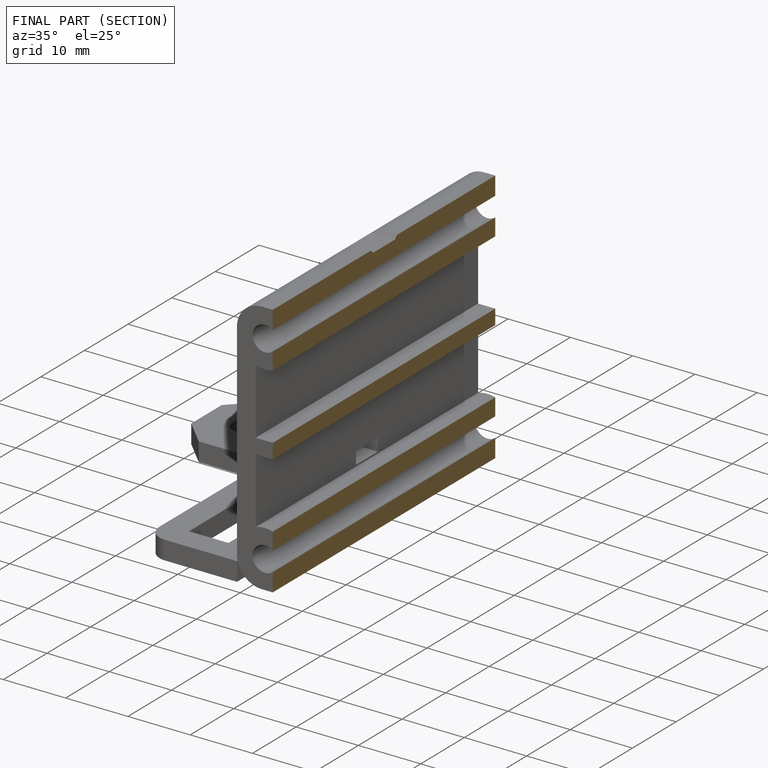
[diagram: finished part — half-section view (interior)]
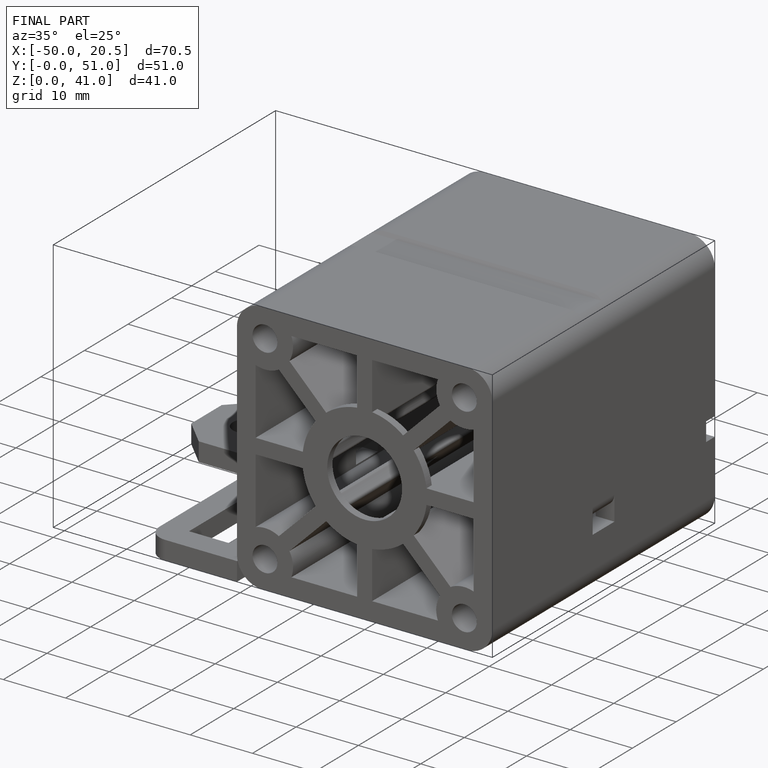
[diagram: finished part — iso view with bounding-box wireframe]
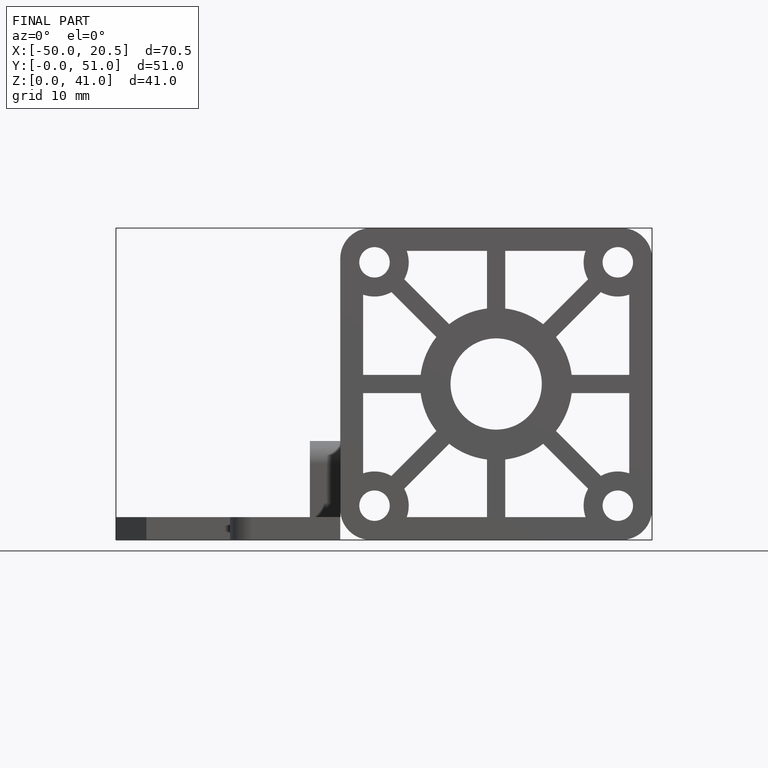
[diagram: finished part — front view with bounding-box wireframe]
